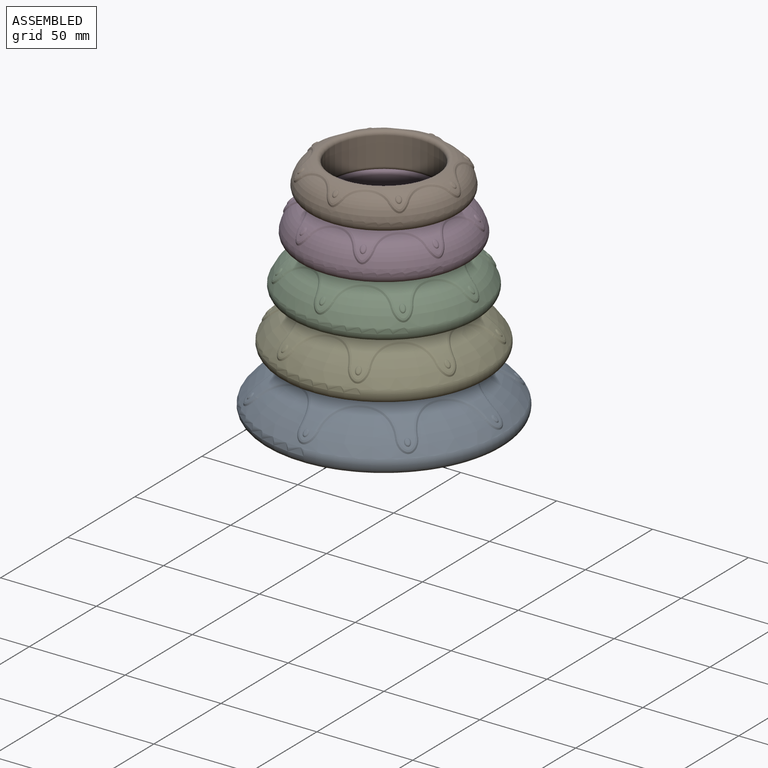
[diagram: assembled view]
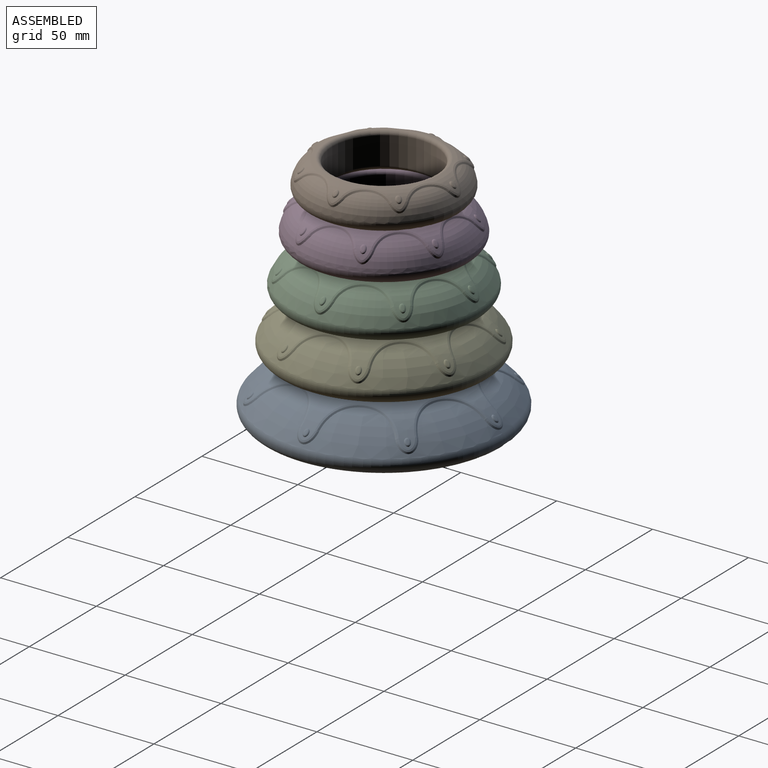
[diagram: assembled view, second angle]
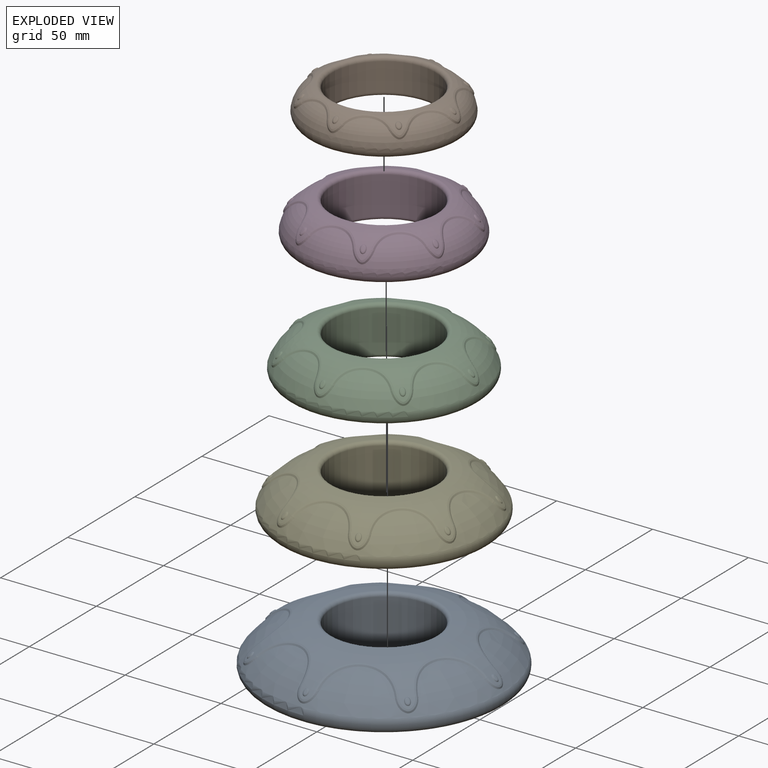
[diagram: exploded view]
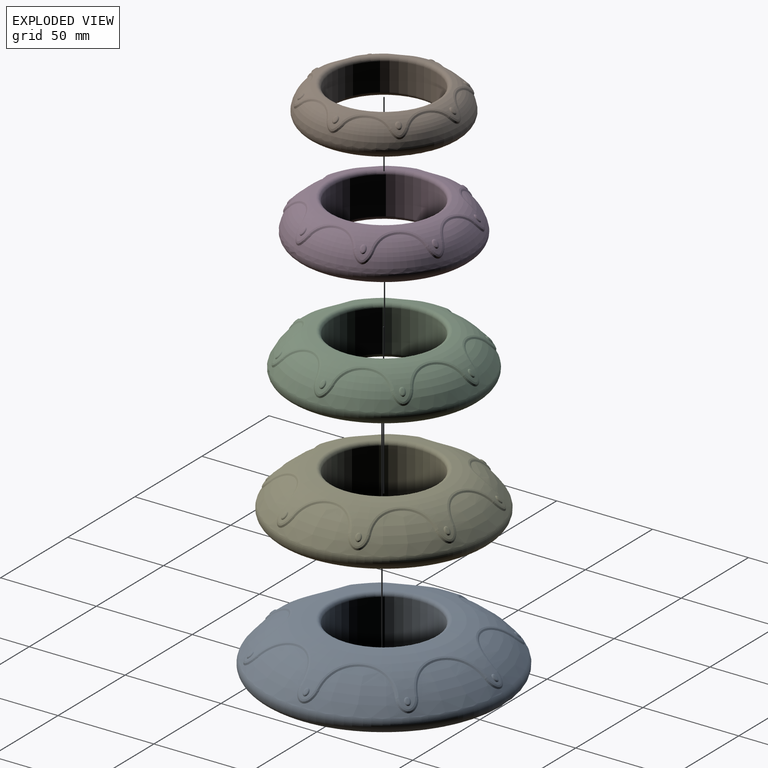
[diagram: exploded view, second angle]
ASSEMBLY  parts=5 mates=4
PART A: 39 faces, bbox 136.4x136.4x30.7 mm
  f0: bspline ~3x3mm, area 10.6mm2, adj f1,f18
  f1: torus R=27mm, axis (0,0,-1), area 2.3mm2, adj f0
  f2: bspline ~3.03x3mm, area 9.8mm2, adj f3,f18
  f3: torus R=27mm, axis (0,0,-1), area 2.3mm2, adj f2
  f4: bspline ~3x3mm, area 10.6mm2, adj f5,f18
  f5: torus R=27mm, axis (0,0,-1), area 2.3mm2, adj f4
  f6: bspline ~3.03x3mm, area 9.8mm2, adj f7,f18
  f7: torus R=27mm, axis (0,0,-1), area 2.3mm2, adj f6
  f8: bspline ~3x3mm, area 10.6mm2, adj f9,f18
  f9: torus R=27mm, axis (0,0,-1), area 2.3mm2, adj f8
  f10: bspline ~3.02x3mm, area 9.3mm2, adj f11,f18
  f11: torus R=27mm, axis (0,0,-1), area 2.3mm2, adj f10
  f12: bspline ~3x3mm, area 10.6mm2, adj f13,f18
  f13: torus R=27mm, axis (0,0,-1), area 2.3mm2, adj f12
  f14: cylinder r=27mm len=54mm, axis (0,0,-1), area 4526.8mm2, adj f20,f21
  f15: torus R=27mm, axis (0,0,-1), area 8681.7mm2, adj f16,f21
  f16: torus R=58mm, axis (0,0,-1), area 3745.9mm2, adj f15,f17
  f17: torus R=27mm, axis (0,0,-1), area 5914.9mm2, adj f16,f22,f23,f24,f25,f26,f27,f28
  f18: torus R=27mm, axis (0,0,-1), area 4449.6mm2, adj f0,f2,f4,f6,f8,f10,f12,f20
  f19: torus R=27mm, axis (0,0,-1), area 2.3mm2, adj f38
  f20: torus R=29mm, axis (0,0,1), area 564.2mm2, adj f14,f18
  f21: torus R=29mm, axis (0,0,1), area 554.5mm2, adj f14,f15
  f22: bspline ~10x5.67mm, area 30.8mm2, adj f17,f18,f23,f24
  f23: bspline ~34.39x20.59mm, area 89.7mm2, adj f17,f18,f22,f25
  f24: bspline ~34.22x20.84mm, area 89.7mm2, adj f17,f18,f22,f26
  f25: bspline ~8.89x8.72mm, area 30.8mm2, adj f17,f18,f23,f27
  f26: bspline ~8.89x8.72mm, area 30.8mm2, adj f17,f18,f24,f28
  f27: bspline ~34.22x20.84mm, area 89.7mm2, adj f17,f18,f25,f29
  f28: bspline ~34.39x20.59mm, area 89.7mm2, adj f17,f18,f26,f30
  f29: bspline ~10x5.67mm, area 30.8mm2, adj f17,f18,f27,f31
  f30: bspline ~10x5.67mm, area 30.8mm2, adj f17,f18,f28,f32
  f31: bspline ~34.39x20.59mm, area 89.7mm2, adj f17,f18,f29,f33
  f32: bspline ~34.22x20.84mm, area 89.7mm2, adj f17,f18,f30,f34
  f33: bspline ~8.89x8.72mm, area 30.8mm2, adj f17,f18,f31,f35
  f34: bspline ~8.89x8.72mm, area 30.8mm2, adj f17,f18,f32,f36
  f35: bspline ~34.22x20.84mm, area 89.7mm2, adj f17,f18,f33,f37
  f36: bspline ~34.39x20.59mm, area 89.7mm2, adj f17,f18,f34,f37
  f37: bspline ~10x5.67mm, area 30.8mm2, adj f17,f18,f35,f36
  f38: bspline ~3.03x3mm, area 9.8mm2, adj f18,f19
PART B: 39 faces, bbox 88.4x88.4x19.2 mm
  f0: bspline ~3x3mm, area 9.9mm2, adj f1,f18
  f1: torus R=27mm, axis (0,0,-1), area 2.2mm2, adj f0
  f2: bspline ~3.03x3mm, area 9.5mm2, adj f3,f18
  f3: torus R=27mm, axis (0,0,-1), area 2.2mm2, adj f2
  f4: bspline ~3x3mm, area 9.9mm2, adj f5,f18
  f5: torus R=27mm, axis (0,0,-1), area 2.2mm2, adj f4
  f6: bspline ~3.03x3mm, area 9.5mm2, adj f7,f18
  f7: torus R=27mm, axis (0,0,-1), area 2.2mm2, adj f6
  f8: bspline ~3x3mm, area 9.9mm2, adj f9,f18
  f9: torus R=27mm, axis (0,0,-1), area 2.2mm2, adj f8
  f10: bspline ~3.04x3mm, area 9.2mm2, adj f11,f18
  f11: torus R=27mm, axis (0,0,-1), area 2.2mm2, adj f10
  f12: bspline ~3x3mm, area 9.9mm2, adj f13,f18
  f13: torus R=27mm, axis (0,0,-1), area 2.2mm2, adj f12
  f14: cylinder r=27mm len=54mm, axis (0,0,-1), area 2463.8mm2, adj f20,f21
  f15: torus R=27mm, axis (0,0,-1), area 1481.5mm2, adj f16,f21
  f16: torus R=35mm, axis (0,0,-1), area 1773.2mm2, adj f15,f17
  f17: torus R=27mm, axis (0,0,-1), area 2363.9mm2, adj f16,f22,f23,f24,f25,f26,f27,f28
  f18: torus R=27mm, axis (0,0,-1), area 905.6mm2, adj f0,f2,f4,f6,f8,f10,f12,f20
  f19: torus R=27mm, axis (0,0,-1), area 2.2mm2, adj f38
  f20: torus R=29mm, axis (0,0,1), area 609.6mm2, adj f14,f18
  f21: torus R=29mm, axis (0,0,1), area 567.9mm2, adj f14,f15
  f22: bspline ~8.87x4.73mm, area 21.1mm2, adj f17,f18,f23,f24
  f23: bspline ~21.51x10.46mm, area 46.4mm2, adj f17,f18,f22,f25
  f24: bspline ~21.77x10mm, area 46.4mm2, adj f17,f18,f22,f26
  f25: bspline ~6.51x6.49mm, area 21.1mm2, adj f17,f18,f23,f27
  f26: bspline ~6.51x6.49mm, area 21.1mm2, adj f17,f18,f24,f28
  f27: bspline ~21.77x10mm, area 46.4mm2, adj f17,f18,f25,f29
  f28: bspline ~21.51x10.46mm, area 46.4mm2, adj f17,f18,f26,f30
  f29: bspline ~8.63x4.5mm, area 21.1mm2, adj f17,f18,f27,f31
  f30: bspline ~8.87x4.73mm, area 21.1mm2, adj f17,f18,f28,f32
  f31: bspline ~21.51x10.46mm, area 46.4mm2, adj f17,f18,f29,f33
  f32: bspline ~21.77x10mm, area 46.4mm2, adj f17,f18,f30,f34
  f33: bspline ~6.51x6.49mm, area 21.1mm2, adj f17,f18,f31,f35
  f34: bspline ~6.51x6.49mm, area 21.1mm2, adj f17,f18,f32,f36
  f35: bspline ~21.77x10mm, area 46.4mm2, adj f17,f18,f33,f37
  f36: bspline ~21.51x10.46mm, area 46.4mm2, adj f17,f18,f34,f37
  f37: bspline ~8.87x4.73mm, area 21.1mm2, adj f17,f18,f35,f36
  f38: bspline ~3.03x3mm, area 9.5mm2, adj f18,f19
PART C: 39 faces, bbox 113.6x113.6x26.2 mm
  f0: bspline ~3.21x3mm, area 9.8mm2, adj f1,f18
  f1: torus R=27mm, axis (0,0,-1), area 2.6mm2, adj f0
  f2: bspline ~3.21x3.04mm, area 9.8mm2, adj f3,f18
  f3: torus R=27mm, axis (0,0,-1), area 2.6mm2, adj f2
  f4: bspline ~3.21x3mm, area 9.8mm2, adj f5,f18
  f5: torus R=27mm, axis (0,0,-1), area 2.6mm2, adj f4
  f6: bspline ~3.21x3.04mm, area 9.8mm2, adj f7,f18
  f7: torus R=27mm, axis (0,0,-1), area 2.6mm2, adj f6
  f8: bspline ~3.21x3mm, area 9.8mm2, adj f9,f18
  f9: torus R=27mm, axis (0,0,-1), area 2.6mm2, adj f8
  f10: bspline ~3.22x3.04mm, area 9.7mm2, adj f11,f18
  f11: torus R=27mm, axis (0,0,-1), area 2.6mm2, adj f10
  f12: bspline ~3.21x3mm, area 9.8mm2, adj f13,f18
  f13: torus R=27mm, axis (0,0,-1), area 2.6mm2, adj f12
  f14: cylinder r=27mm len=54mm, axis (0,0,-1), area 3668.9mm2, adj f20,f21
  f15: torus R=27mm, axis (0,0,-1), area 4340.6mm2, adj f16,f21
  f16: torus R=45mm, axis (0,0,-1), area 2508.4mm2, adj f15,f17
  f17: torus R=27mm, axis (0,0,-1), area 3715.1mm2, adj f16,f22,f23,f24,f25,f26,f27,f28
  f18: torus R=27mm, axis (0,0,-1), area 2366.7mm2, adj f0,f2,f4,f6,f8,f10,f12,f20
  f19: torus R=27mm, axis (0,0,-1), area 2.6mm2, adj f38
  f20: torus R=29mm, axis (0,0,1), area 578.5mm2, adj f14,f18
  f21: torus R=29mm, axis (0,0,1), area 561mm2, adj f14,f15
  f22: bspline ~9.93x6.17mm, area 29.3mm2, adj f17,f18,f23,f24
  f23: bspline ~25.89x13.97mm, area 63.8mm2, adj f17,f18,f22,f25
  f24: bspline ~25.9x13.97mm, area 63.8mm2, adj f17,f18,f22,f26
  f25: bspline ~8.34x8.06mm, area 29.3mm2, adj f17,f18,f23,f27
  f26: bspline ~8.34x8.06mm, area 29.3mm2, adj f17,f18,f24,f28
  f27: bspline ~25.89x13.97mm, area 63.8mm2, adj f17,f18,f25,f29
  f28: bspline ~25.89x13.97mm, area 63.8mm2, adj f17,f18,f26,f30
  f29: bspline ~9.86x5.94mm, area 29.3mm2, adj f17,f18,f27,f31
  f30: bspline ~9.93x6.17mm, area 29.3mm2, adj f17,f18,f28,f32
  f31: bspline ~25.89x13.97mm, area 63.8mm2, adj f17,f18,f29,f33
  f32: bspline ~25.9x13.97mm, area 63.8mm2, adj f17,f18,f30,f34
  f33: bspline ~8.34x8.06mm, area 29.3mm2, adj f17,f18,f31,f35
  f34: bspline ~8.34x8.06mm, area 29.3mm2, adj f17,f18,f32,f36
  f35: bspline ~25.89x13.97mm, area 63.8mm2, adj f17,f18,f33,f37
  f36: bspline ~25.89x13.97mm, area 63.8mm2, adj f17,f18,f34,f37
  f37: bspline ~9.93x6.17mm, area 29.3mm2, adj f17,f18,f35,f36
  f38: bspline ~3.21x3.04mm, area 9.8mm2, adj f18,f19
PART D: 39 faces, bbox 99.8x99.8x24.2 mm
  f0: bspline ~3.18x3mm, area 9.8mm2, adj f1,f18
  f1: torus R=27mm, axis (0,0,-1), area 2.6mm2, adj f0
  f2: bspline ~3.18x3.02mm, area 9.8mm2, adj f3,f18
  f3: torus R=27mm, axis (0,0,-1), area 2.6mm2, adj f2
  f4: bspline ~3.18x3mm, area 9.8mm2, adj f5,f18
  f5: torus R=27mm, axis (0,0,-1), area 2.6mm2, adj f4
  f6: bspline ~3.18x3.02mm, area 9.8mm2, adj f7,f18
  f7: torus R=27mm, axis (0,0,-1), area 2.6mm2, adj f6
  f8: bspline ~3.18x3mm, area 9.8mm2, adj f9,f18
  f9: torus R=27mm, axis (0,0,-1), area 2.6mm2, adj f8
  f10: bspline ~3.18x3.02mm, area 9.8mm2, adj f11,f18
  f11: torus R=27mm, axis (0,0,-1), area 2.6mm2, adj f10
  f12: bspline ~3.18x3mm, area 9.8mm2, adj f13,f18
  f13: torus R=27mm, axis (0,0,-1), area 2.6mm2, adj f12
  f14: cylinder r=27mm len=54mm, axis (0,0,-1), area 3321.2mm2, adj f20,f21
  f15: torus R=27mm, axis (0,0,-1), area 2971.2mm2, adj f16,f21
  f16: torus R=40mm, axis (0,0,-1), area 1931.3mm2, adj f15,f17
  f17: torus R=27mm, axis (0,0,-1), area 3219.8mm2, adj f16,f22,f23,f24,f25,f26,f27,f28
  f18: torus R=27mm, axis (0,0,-1), area 1679.3mm2, adj f0,f2,f4,f6,f8,f10,f12,f20
  f19: torus R=27mm, axis (0,0,-1), area 2.6mm2, adj f38
  f20: torus R=29mm, axis (0,0,1), area 590.2mm2, adj f14,f18
  f21: torus R=29mm, axis (0,0,1), area 567.6mm2, adj f14,f15
  f22: bspline ~9.53x5.87mm, area 27.3mm2, adj f17,f18,f23,f24
  f23: bspline ~23.8x11.91mm, area 54.8mm2, adj f17,f18,f22,f25
  f24: bspline ~23.35x11.92mm, area 54.8mm2, adj f17,f18,f22,f26
  f25: bspline ~7.53x7.41mm, area 27.3mm2, adj f17,f18,f23,f27
  f26: bspline ~7.53x7.41mm, area 27.3mm2, adj f17,f18,f24,f28
  f27: bspline ~23.5x12.4mm, area 54.8mm2, adj f17,f18,f25,f29
  f28: bspline ~23.35x11.91mm, area 54.8mm2, adj f17,f18,f26,f30
  f29: bspline ~9.81x6.58mm, area 27.3mm2, adj f17,f18,f27,f31
  f30: bspline ~9.53x5.87mm, area 27.3mm2, adj f17,f18,f28,f32
  f31: bspline ~23.8x11.91mm, area 54.8mm2, adj f17,f18,f29,f33
  f32: bspline ~23.35x11.92mm, area 54.8mm2, adj f17,f18,f30,f34
  f33: bspline ~7.53x7.41mm, area 27.3mm2, adj f17,f18,f31,f35
  f34: bspline ~7.53x7.41mm, area 27.3mm2, adj f17,f18,f32,f36
  f35: bspline ~23.5x12.4mm, area 54.8mm2, adj f17,f18,f33,f37
  f36: bspline ~23.35x11.91mm, area 54.8mm2, adj f17,f18,f34,f37
  f37: bspline ~9.53x5.87mm, area 27.3mm2, adj f17,f18,f35,f36
  f38: bspline ~3.18x3.02mm, area 9.8mm2, adj f18,f19
PART E: 39 faces, bbox 119.1x119.1x27.7 mm
  f0: bspline ~3.09x3mm, area 9.5mm2, adj f1,f18
  f1: torus R=27mm, axis (0,0,-1), area 2.5mm2, adj f0
  f2: bspline ~3.09x3.03mm, area 9.5mm2, adj f3,f18
  f3: torus R=27mm, axis (0,0,-1), area 2.5mm2, adj f2
  f4: bspline ~3.09x3mm, area 9.5mm2, adj f5,f18
  f5: torus R=27mm, axis (0,0,-1), area 2.5mm2, adj f4
  f6: bspline ~3.09x3.03mm, area 9.5mm2, adj f7,f18
  f7: torus R=27mm, axis (0,0,-1), area 2.5mm2, adj f6
  f8: bspline ~3.09x3mm, area 9.5mm2, adj f9,f18
  f9: torus R=27mm, axis (0,0,-1), area 2.5mm2, adj f8
  f10: bspline ~3.06x3mm, area 9.9mm2, adj f11,f18
  f11: torus R=27mm, axis (0,0,-1), area 2.5mm2, adj f10
  f12: bspline ~3.09x3mm, area 9.5mm2, adj f13,f18
  f13: torus R=27mm, axis (0,0,-1), area 2.5mm2, adj f12
  f14: cylinder r=27mm len=54mm, axis (0,0,-1), area 4013.2mm2, adj f20,f21
  f15: torus R=27mm, axis (0,0,-1), area 5882.7mm2, adj f16,f21
  f16: torus R=50mm, axis (0,0,-1), area 3006.5mm2, adj f15,f17
  f17: torus R=27mm, axis (0,0,-1), area 4488.3mm2, adj f16,f22,f23,f24,f25,f26,f27,f28
  f18: torus R=27mm, axis (0,0,-1), area 3083.6mm2, adj f0,f2,f4,f6,f8,f10,f12,f20
  f19: torus R=27mm, axis (0,0,-1), area 2.5mm2, adj f38
  f20: torus R=29mm, axis (0,0,1), area 571.2mm2, adj f14,f18
  f21: torus R=29mm, axis (0,0,1), area 557.6mm2, adj f14,f15
  f22: bspline ~10x6.04mm, area 30.6mm2, adj f17,f18,f23,f24
  f23: bspline ~29.11x17.71mm, area 73.7mm2, adj f17,f18,f22,f25
  f24: bspline ~29.77x16.75mm, area 73.7mm2, adj f17,f18,f22,f26
  f25: bspline ~8.54x8.43mm, area 30.6mm2, adj f17,f18,f23,f27
  f26: bspline ~8.54x8.43mm, area 30.6mm2, adj f17,f18,f24,f28
  f27: bspline ~29.77x16.75mm, area 73.7mm2, adj f17,f18,f25,f29
  f28: bspline ~29.11x17.71mm, area 73.7mm2, adj f17,f18,f26,f30
  f29: bspline ~9.98x5.87mm, area 30.6mm2, adj f17,f18,f27,f31
  f30: bspline ~10x6.04mm, area 30.6mm2, adj f17,f18,f28,f32
  f31: bspline ~29.11x17.71mm, area 73.7mm2, adj f17,f18,f29,f33
  f32: bspline ~29.77x16.75mm, area 73.7mm2, adj f17,f18,f30,f34
  f33: bspline ~8.54x8.43mm, area 30.6mm2, adj f17,f18,f31,f35
  f34: bspline ~8.54x8.43mm, area 30.6mm2, adj f17,f18,f32,f36
  f35: bspline ~29.77x16.75mm, area 73.7mm2, adj f17,f18,f33,f37
  f36: bspline ~29.11x17.71mm, area 73.7mm2, adj f17,f18,f34,f37
  f37: bspline ~10x6.04mm, area 30.6mm2, adj f17,f18,f35,f36
  f38: bspline ~3.09x3.03mm, area 9.5mm2, adj f18,f19
PLACE A t=(0,0,-0.02)mm
PLACE B rot(axis=(0,0,1),90deg) t=(0,0,107.45)mm
PLACE C rot(axis=(0,0,1),45deg) t=(0,0,58.29)mm
PLACE D rot(axis=(0,0,1),67.5deg) t=(0,0,83.89)mm
PLACE E rot(axis=(0,0,1),22.5deg) t=(0,0,30.65)mm
MATE revolute B.f1 <-> D.f1  axis (0,0,1) through (0,0,107.51)mm
MATE revolute D.f1 <-> C.f1  axis (0,0,1) through (0,0,83.95)mm
MATE revolute C.f1 <-> E.f1  axis (0,0,1) through (0,0,58.33)mm
MATE revolute E.f1 <-> A.f1  axis (0,0,1) through (0,0,30.68)mm
